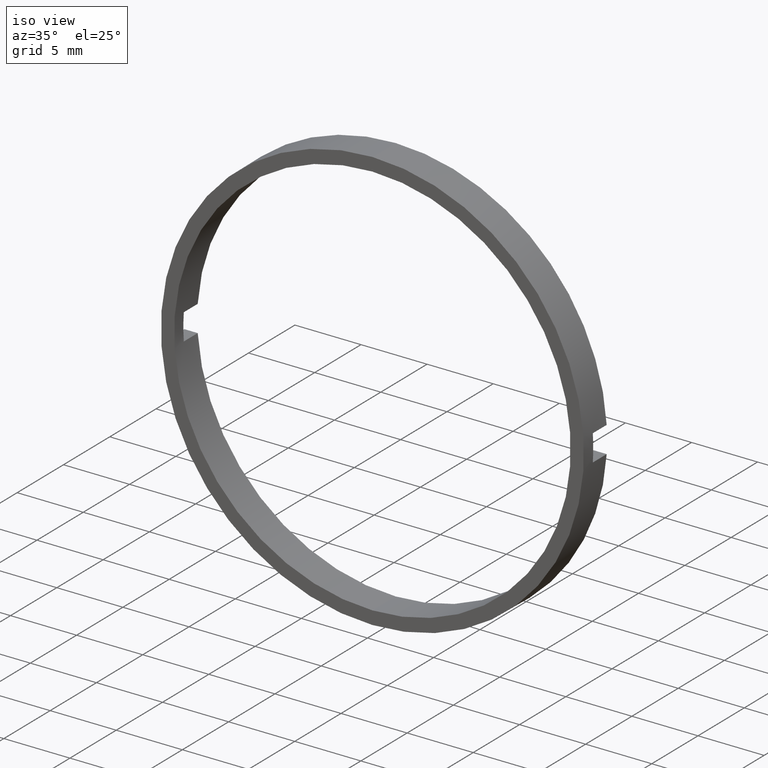
[diagram: clean part render]
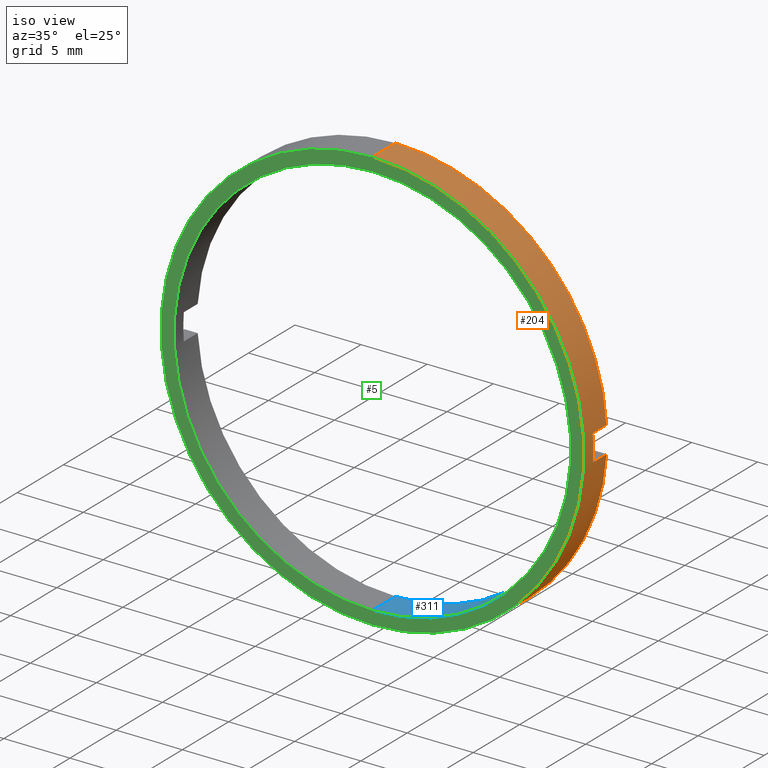
[diagram: same view with three faces highlighted in distinct colors, each labeled with its STEP entity id]
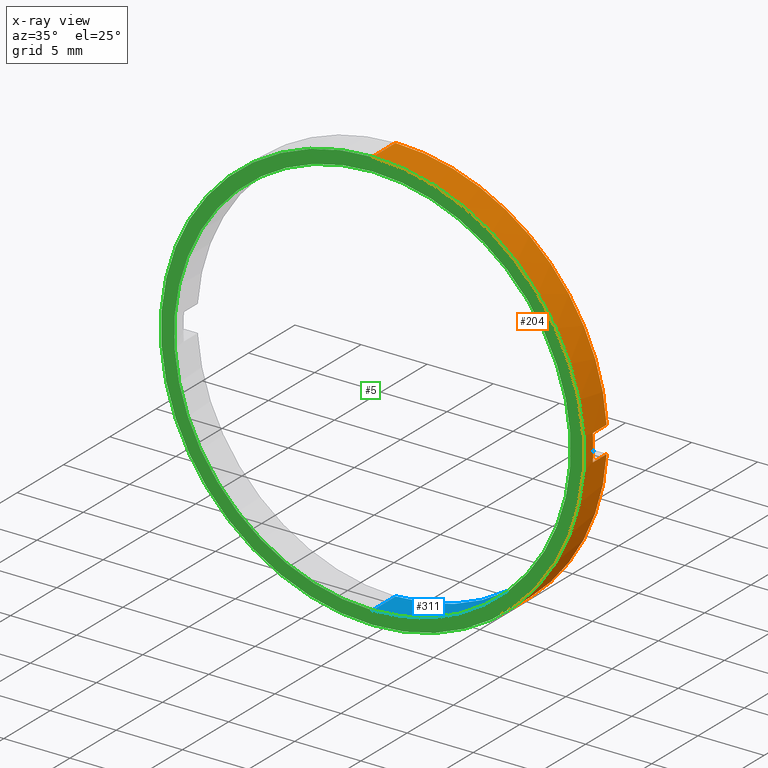
[diagram: x-ray of the same camera — body ghosted, the three highlighted faces saturated]
A machine part, iso view with three faces highlighted in distinct colors.
The next image is the same camera in x-ray (body ghosted, the three faces saturated) — at least one of them is partly hidden behind the body in this view.
Their STEP definitions:

[orange] entity #204 — the highlighted cylindrical surface (partial cylindrical patch) has radius 16 mm, axis along (-0, 1, -0).
#1 = DIRECTION ( 'NONE',  ( 0.0000000000000000000, 0.0000000000000000000, 1.000000000000000000 ) ) ;
#3 = LINE ( 'NONE', #99, #110 ) ;
#8 = VERTEX_POINT ( 'NONE', #55 ) ;
#15 = EDGE_CURVE ( 'NONE', #410, #131, #97, .T. ) ;
#16 = EDGE_CURVE ( 'NONE', #273, #131, #3, .T. ) ;
#19 = DIRECTION ( 'NONE',  ( 0.0000000000000000000, 0.0000000000000000000, 1.000000000000000000 ) ) ;
#27 = LINE ( 'NONE', #338, #459 ) ;
#29 = AXIS2_PLACEMENT_3D ( 'NONE', #33, #422, #218 ) ;
#33 = CARTESIAN_POINT ( 'NONE',  ( 0.0000000000000000000, 56.26084262701361600, 0.0000000000000000000 ) ) ;
#55 = CARTESIAN_POINT ( 'NONE',  ( 15.96871942267130600, -1.964249787179430900, -1.000000000000000000 ) ) ;
#56 = ORIENTED_EDGE ( 'NONE', *, *, #298, .T. ) ;
#61 = AXIS2_PLACEMENT_3D ( 'NONE', #437, #485, #307 ) ;
#63 = CARTESIAN_POINT ( 'NONE',  ( 1.959434878635766300E-015, 56.26084262701361600, -16.00000000000000700 ) ) ;
#66 = DIRECTION ( 'NONE',  ( -0.0000000000000000000, 1.000000000000000000, -0.0000000000000000000 ) ) ;
#67 = VECTOR ( 'NONE', #434, 1000.000000000000000 ) ;
#80 = CARTESIAN_POINT ( 'NONE',  ( 1.959434878635766300E-015, -1.964249787179434000, -16.00000000000000700 ) ) ;
#81 = DIRECTION ( 'NONE',  ( -0.0000000000000000000, 1.000000000000000000, -0.0000000000000000000 ) ) ;
#92 = CARTESIAN_POINT ( 'NONE',  ( 0.0000000000000000000, -4.464249787179428900, 16.00000000000000700 ) ) ;
#97 = CIRCLE ( 'NONE', #61, 16.00000000000000700 ) ;
#99 = CARTESIAN_POINT ( 'NONE',  ( 15.96871942267132000, 56.26084262701361600, 1.000000000000000000 ) ) ;
#104 = ORIENTED_EDGE ( 'NONE', *, *, #277, .F. ) ;
#105 = DIRECTION ( 'NONE',  ( -0.0000000000000000000, 1.000000000000000000, -0.0000000000000000000 ) ) ;
#110 = VECTOR ( 'NONE', #233, 1000.000000000000000 ) ;
#116 = CARTESIAN_POINT ( 'NONE',  ( 15.96871942267131700, -3.464249787179428400, 0.9999999999999995600 ) ) ;
#125 = EDGE_CURVE ( 'NONE', #8, #397, #275, .T. ) ;
#130 = ORIENTED_EDGE ( 'NONE', *, *, #187, .T. ) ;
#131 = VERTEX_POINT ( 'NONE', #409 ) ;
#137 = CIRCLE ( 'NONE', #304, 16.00000000000000700 ) ;
#147 = ORIENTED_EDGE ( 'NONE', *, *, #15, .F. ) ;
#179 = CARTESIAN_POINT ( 'NONE',  ( 0.0000000000000000000, -3.464249787179428400, 0.0000000000000000000 ) ) ;
#187 = EDGE_CURVE ( 'NONE', #303, #397, #421, .T. ) ;
#192 = LINE ( 'NONE', #476, #67 ) ;
#204 = ADVANCED_FACE ( 'NONE', ( #324 ), #312, .T. ) ;
#218 = DIRECTION ( 'NONE',  ( 0.0000000000000000000, 0.0000000000000000000, 1.000000000000000000 ) ) ;
#233 = DIRECTION ( 'NONE',  ( -0.0000000000000000000, 1.000000000000000000, -0.0000000000000000000 ) ) ;
#244 = ORIENTED_EDGE ( 'NONE', *, *, #16, .T. ) ;
#251 = AXIS2_PLACEMENT_3D ( 'NONE', #179, #369, #1 ) ;
#273 = VERTEX_POINT ( 'NONE', #116 ) ;
#275 = CIRCLE ( 'NONE', #431, 16.00000000000000700 ) ;
#276 = CIRCLE ( 'NONE', #251, 16.00000000000000700 ) ;
#277 = EDGE_CURVE ( 'NONE', #273, #357, #276, .T. ) ;
#289 = ORIENTED_EDGE ( 'NONE', *, *, #125, .F. ) ;
#298 = EDGE_CURVE ( 'NONE', #8, #357, #27, .T. ) ;
#303 = VERTEX_POINT ( 'NONE', #469 ) ;
#304 = AXIS2_PLACEMENT_3D ( 'NONE', #377, #81, #389 ) ;
#307 = DIRECTION ( 'NONE',  ( 0.0000000000000000000, 0.0000000000000000000, 1.000000000000000000 ) ) ;
#312 = CYLINDRICAL_SURFACE ( 'NONE', #29, 16.00000000000000700 ) ;
#324 = FACE_OUTER_BOUND ( 'NONE', #362, .T. ) ;
#338 = CARTESIAN_POINT ( 'NONE',  ( 15.96871942267132000, 56.26084262701361600, -1.000000000000000000 ) ) ;
#344 = ORIENTED_EDGE ( 'NONE', *, *, #451, .F. ) ;
#348 = EDGE_CURVE ( 'NONE', #463, #303, #137, .T. ) ;
#357 = VERTEX_POINT ( 'NONE', #386 ) ;
#362 = EDGE_LOOP ( 'NONE', ( #417, #130, #289, #56, #104, #244, #147, #344 ) ) ;
#369 = DIRECTION ( 'NONE',  ( 0.0000000000000000000, 1.000000000000000000, 0.0000000000000000000 ) ) ;
#377 = CARTESIAN_POINT ( 'NONE',  ( 0.0000000000000000000, -4.464249787179428900, 0.0000000000000000000 ) ) ;
#383 = DIRECTION ( 'NONE',  ( 0.0000000000000000000, -1.000000000000000000, 0.0000000000000000000 ) ) ;
#386 = CARTESIAN_POINT ( 'NONE',  ( 15.96871942267131700, -3.464249787179428400, -0.9999999999999995600 ) ) ;
#389 = DIRECTION ( 'NONE',  ( 0.0000000000000000000, 0.0000000000000000000, 1.000000000000000000 ) ) ;
#397 = VERTEX_POINT ( 'NONE', #80 ) ;
#409 = CARTESIAN_POINT ( 'NONE',  ( 15.96871942267130600, -1.964249787179430900, 1.000000000000000000 ) ) ;
#410 = VERTEX_POINT ( 'NONE', #428 ) ;
#416 = CARTESIAN_POINT ( 'NONE',  ( 0.0000000000000000000, -1.964249787179434000, 0.0000000000000000000 ) ) ;
#417 = ORIENTED_EDGE ( 'NONE', *, *, #348, .T. ) ;
#421 = LINE ( 'NONE', #63, #466 ) ;
#422 = DIRECTION ( 'NONE',  ( -0.0000000000000000000, 1.000000000000000000, -0.0000000000000000000 ) ) ;
#428 = CARTESIAN_POINT ( 'NONE',  ( 0.0000000000000000000, -1.964249787179434000, 16.00000000000000700 ) ) ;
#431 = AXIS2_PLACEMENT_3D ( 'NONE', #416, #105, #19 ) ;
#434 = DIRECTION ( 'NONE',  ( -0.0000000000000000000, 1.000000000000000000, -0.0000000000000000000 ) ) ;
#437 = CARTESIAN_POINT ( 'NONE',  ( 0.0000000000000000000, -1.964249787179434000, 0.0000000000000000000 ) ) ;
#451 = EDGE_CURVE ( 'NONE', #463, #410, #192, .T. ) ;
#459 = VECTOR ( 'NONE', #383, 1000.000000000000000 ) ;
#463 = VERTEX_POINT ( 'NONE', #92 ) ;
#466 = VECTOR ( 'NONE', #66, 1000.000000000000000 ) ;
#469 = CARTESIAN_POINT ( 'NONE',  ( 1.959434878635766300E-015, -4.464249787179428900, -16.00000000000000700 ) ) ;
#476 = CARTESIAN_POINT ( 'NONE',  ( 0.0000000000000000000, 56.26084262701361600, 16.00000000000000700 ) ) ;
#485 = DIRECTION ( 'NONE',  ( -0.0000000000000000000, 1.000000000000000000, -0.0000000000000000000 ) ) ;

[blue] entity #311 — the highlighted cylindrical surface (partial cylindrical patch) has radius 15 mm, axis along (-0, 1, -0).
#10 = EDGE_CURVE ( 'NONE', #423, #368, #310, .T. ) ;
#38 = AXIS2_PLACEMENT_3D ( 'NONE', #243, #323, #59 ) ;
#39 = CARTESIAN_POINT ( 'NONE',  ( 14.96662954709577200, 56.26084262701361600, -1.000000000000000000 ) ) ;
#40 = DIRECTION ( 'NONE',  ( 0.0000000000000000000, -1.000000000000000000, 0.0000000000000000000 ) ) ;
#46 = VECTOR ( 'NONE', #214, 1000.000000000000000 ) ;
#48 = ORIENTED_EDGE ( 'NONE', *, *, #162, .T. ) ;
#51 = CARTESIAN_POINT ( 'NONE',  ( 1.836970198721030800E-015, -1.964249787179434000, -15.00000000000000700 ) ) ;
#59 = DIRECTION ( 'NONE',  ( 0.0000000000000000000, 0.0000000000000000000, 1.000000000000000000 ) ) ;
#73 = CIRCLE ( 'NONE', #464, 15.00000000000000700 ) ;
#76 = DIRECTION ( 'NONE',  ( -0.0000000000000000000, -1.000000000000000000, -0.0000000000000000000 ) ) ;
#83 = DIRECTION ( 'NONE',  ( -0.0000000000000000000, 1.000000000000000000, -0.0000000000000000000 ) ) ;
#91 = CIRCLE ( 'NONE', #38, 15.00000000000000700 ) ;
#94 = CARTESIAN_POINT ( 'NONE',  ( 0.0000000000000000000, -1.964249787179434000, 0.0000000000000000000 ) ) ;
#96 = VECTOR ( 'NONE', #392, 1000.000000000000000 ) ;
#101 = EDGE_CURVE ( 'NONE', #296, #225, #73, .T. ) ;
#108 = ORIENTED_EDGE ( 'NONE', *, *, #10, .T. ) ;
#113 = DIRECTION ( 'NONE',  ( 1.509903313490212900E-014, 0.0000000000000000000, 1.000000000000000000 ) ) ;
#115 = VERTEX_POINT ( 'NONE', #488 ) ;
#120 = VERTEX_POINT ( 'NONE', #449 ) ;
#136 = CARTESIAN_POINT ( 'NONE',  ( 0.0000000000000000000, -4.464249787179428900, 0.0000000000000000000 ) ) ;
#140 = EDGE_LOOP ( 'NONE', ( #440, #446, #337, #108, #167, #219, #206, #48 ) ) ;
#154 = CARTESIAN_POINT ( 'NONE',  ( 0.0000000000000000000, 56.26084262701361600, 0.0000000000000000000 ) ) ;
#162 = EDGE_CURVE ( 'NONE', #115, #432, #91, .T. ) ;
#166 = LINE ( 'NONE', #268, #96 ) ;
#167 = ORIENTED_EDGE ( 'NONE', *, *, #317, .T. ) ;
#168 = AXIS2_PLACEMENT_3D ( 'NONE', #287, #76, #113 ) ;
#176 = DIRECTION ( 'NONE',  ( -0.0000000000000000000, 1.000000000000000000, -0.0000000000000000000 ) ) ;
#178 = VECTOR ( 'NONE', #40, 1000.000000000000000 ) ;
#189 = EDGE_CURVE ( 'NONE', #349, #120, #390, .T. ) ;
#197 = LINE ( 'NONE', #39, #366 ) ;
#206 = ORIENTED_EDGE ( 'NONE', *, *, #415, .T. ) ;
#208 = FACE_OUTER_BOUND ( 'NONE', #140, .T. ) ;
#214 = DIRECTION ( 'NONE',  ( -0.0000000000000000000, 1.000000000000000000, -0.0000000000000000000 ) ) ;
#219 = ORIENTED_EDGE ( 'NONE', *, *, #189, .F. ) ;
#220 = CARTESIAN_POINT ( 'NONE',  ( 0.0000000000000000000, 56.26084262701361600, 15.00000000000000700 ) ) ;
#225 = VERTEX_POINT ( 'NONE', #252 ) ;
#238 = DIRECTION ( 'NONE',  ( 0.0000000000000000000, 0.0000000000000000000, 1.000000000000000000 ) ) ;
#240 = DIRECTION ( 'NONE',  ( 0.0000000000000000000, 0.0000000000000000000, 1.000000000000000000 ) ) ;
#243 = CARTESIAN_POINT ( 'NONE',  ( 0.0000000000000000000, -1.964249787179434000, 0.0000000000000000000 ) ) ;
#252 = CARTESIAN_POINT ( 'NONE',  ( 1.836970198721030800E-015, -4.464249787179428900, -15.00000000000000700 ) ) ;
#268 = CARTESIAN_POINT ( 'NONE',  ( 1.836970198721030800E-015, 56.26084262701361600, -15.00000000000000700 ) ) ;
#272 = AXIS2_PLACEMENT_3D ( 'NONE', #154, #83, #297 ) ;
#278 = EDGE_CURVE ( 'NONE', #296, #423, #381, .T. ) ;
#287 = CARTESIAN_POINT ( 'NONE',  ( 0.0000000000000000000, -3.464249787179428400, 0.0000000000000000000 ) ) ;
#296 = VERTEX_POINT ( 'NONE', #326 ) ;
#297 = DIRECTION ( 'NONE',  ( 0.0000000000000000000, 0.0000000000000000000, 1.000000000000000000 ) ) ;
#299 = DIRECTION ( 'NONE',  ( -0.0000000000000000000, 1.000000000000000000, -0.0000000000000000000 ) ) ;
#310 = CIRCLE ( 'NONE', #460, 15.00000000000000700 ) ;
#311 = ADVANCED_FACE ( 'NONE', ( #208 ), #447, .F. ) ;
#317 = EDGE_CURVE ( 'NONE', #368, #120, #467, .T. ) ;
#323 = DIRECTION ( 'NONE',  ( -0.0000000000000000000, 1.000000000000000000, -0.0000000000000000000 ) ) ;
#326 = CARTESIAN_POINT ( 'NONE',  ( 0.0000000000000000000, -4.464249787179428900, 15.00000000000000700 ) ) ;
#335 = CARTESIAN_POINT ( 'NONE',  ( 14.96662954709577100, -1.964249787179434000, 0.9999999999999995600 ) ) ;
#337 = ORIENTED_EDGE ( 'NONE', *, *, #278, .T. ) ;
#349 = VERTEX_POINT ( 'NONE', #505 ) ;
#366 = VECTOR ( 'NONE', #299, 1000.000000000000000 ) ;
#368 = VERTEX_POINT ( 'NONE', #335 ) ;
#381 = LINE ( 'NONE', #220, #46 ) ;
#390 = CIRCLE ( 'NONE', #168, 15.00000000000000700 ) ;
#392 = DIRECTION ( 'NONE',  ( -0.0000000000000000000, 1.000000000000000000, -0.0000000000000000000 ) ) ;
#396 = CARTESIAN_POINT ( 'NONE',  ( 0.0000000000000000000, -1.964249787179434000, 15.00000000000000700 ) ) ;
#415 = EDGE_CURVE ( 'NONE', #349, #115, #197, .T. ) ;
#423 = VERTEX_POINT ( 'NONE', #396 ) ;
#432 = VERTEX_POINT ( 'NONE', #51 ) ;
#435 = EDGE_CURVE ( 'NONE', #225, #432, #166, .T. ) ;
#440 = ORIENTED_EDGE ( 'NONE', *, *, #435, .F. ) ;
#446 = ORIENTED_EDGE ( 'NONE', *, *, #101, .F. ) ;
#447 = CYLINDRICAL_SURFACE ( 'NONE', #272, 15.00000000000000700 ) ;
#449 = CARTESIAN_POINT ( 'NONE',  ( 14.96662954709577100, -3.464249787179428400, 0.9999999999999995600 ) ) ;
#460 = AXIS2_PLACEMENT_3D ( 'NONE', #94, #486, #238 ) ;
#461 = CARTESIAN_POINT ( 'NONE',  ( 14.96662954709577200, 56.26084262701361600, 1.000000000000000000 ) ) ;
#464 = AXIS2_PLACEMENT_3D ( 'NONE', #136, #176, #240 ) ;
#467 = LINE ( 'NONE', #461, #178 ) ;
#486 = DIRECTION ( 'NONE',  ( -0.0000000000000000000, 1.000000000000000000, -0.0000000000000000000 ) ) ;
#488 = CARTESIAN_POINT ( 'NONE',  ( 14.96662954709577100, -1.964249787179434000, -0.9999999999999995600 ) ) ;
#505 = CARTESIAN_POINT ( 'NONE',  ( 14.96662954709577100, -3.464249787179428400, -0.9999999999999995600 ) ) ;

[green] entity #5 — the highlighted planar face has unit normal (-0, 1, 0).
#5 = ADVANCED_FACE ( 'NONE', ( #427, #124 ), #134, .F. ) ;
#17 = DIRECTION ( 'NONE',  ( 0.0000000000000000000, 0.0000000000000000000, 1.000000000000000000 ) ) ;
#22 = CARTESIAN_POINT ( 'NONE',  ( 0.0000000000000000000, -4.464249787179428900, 0.0000000000000000000 ) ) ;
#45 = EDGE_CURVE ( 'NONE', #225, #296, #406, .T. ) ;
#70 = ORIENTED_EDGE ( 'NONE', *, *, #101, .T. ) ;
#73 = CIRCLE ( 'NONE', #464, 15.00000000000000700 ) ;
#81 = DIRECTION ( 'NONE',  ( -0.0000000000000000000, 1.000000000000000000, -0.0000000000000000000 ) ) ;
#92 = CARTESIAN_POINT ( 'NONE',  ( 0.0000000000000000000, -4.464249787179428900, 16.00000000000000700 ) ) ;
#101 = EDGE_CURVE ( 'NONE', #296, #225, #73, .T. ) ;
#124 = FACE_BOUND ( 'NONE', #237, .T. ) ;
#134 = PLANE ( 'NONE',  #491 ) ;
#136 = CARTESIAN_POINT ( 'NONE',  ( 0.0000000000000000000, -4.464249787179428900, 0.0000000000000000000 ) ) ;
#137 = CIRCLE ( 'NONE', #304, 16.00000000000000700 ) ;
#151 = EDGE_CURVE ( 'NONE', #303, #463, #177, .T. ) ;
#176 = DIRECTION ( 'NONE',  ( -0.0000000000000000000, 1.000000000000000000, -0.0000000000000000000 ) ) ;
#177 = CIRCLE ( 'NONE', #370, 16.00000000000000700 ) ;
#211 = ORIENTED_EDGE ( 'NONE', *, *, #45, .T. ) ;
#225 = VERTEX_POINT ( 'NONE', #252 ) ;
#237 = EDGE_LOOP ( 'NONE', ( #70, #211 ) ) ;
#240 = DIRECTION ( 'NONE',  ( 0.0000000000000000000, 0.0000000000000000000, 1.000000000000000000 ) ) ;
#252 = CARTESIAN_POINT ( 'NONE',  ( 1.836970198721030800E-015, -4.464249787179428900, -15.00000000000000700 ) ) ;
#260 = EDGE_LOOP ( 'NONE', ( #462, #267 ) ) ;
#267 = ORIENTED_EDGE ( 'NONE', *, *, #151, .F. ) ;
#281 = DIRECTION ( 'NONE',  ( -0.0000000000000000000, 1.000000000000000000, -0.0000000000000000000 ) ) ;
#296 = VERTEX_POINT ( 'NONE', #326 ) ;
#303 = VERTEX_POINT ( 'NONE', #469 ) ;
#304 = AXIS2_PLACEMENT_3D ( 'NONE', #377, #81, #389 ) ;
#326 = CARTESIAN_POINT ( 'NONE',  ( 0.0000000000000000000, -4.464249787179428900, 15.00000000000000700 ) ) ;
#348 = EDGE_CURVE ( 'NONE', #463, #303, #137, .T. ) ;
#358 = DIRECTION ( 'NONE',  ( 0.0000000000000000000, 0.0000000000000000000, 1.000000000000000000 ) ) ;
#370 = AXIS2_PLACEMENT_3D ( 'NONE', #22, #448, #17 ) ;
#377 = CARTESIAN_POINT ( 'NONE',  ( 0.0000000000000000000, -4.464249787179428900, 0.0000000000000000000 ) ) ;
#389 = DIRECTION ( 'NONE',  ( 0.0000000000000000000, 0.0000000000000000000, 1.000000000000000000 ) ) ;
#405 = CARTESIAN_POINT ( 'NONE',  ( 15.00000000000000700, -4.464249787179429800, 0.0000000000000000000 ) ) ;
#406 = CIRCLE ( 'NONE', #484, 15.00000000000000700 ) ;
#411 = CARTESIAN_POINT ( 'NONE',  ( 0.0000000000000000000, -4.464249787179428900, 0.0000000000000000000 ) ) ;
#427 = FACE_OUTER_BOUND ( 'NONE', #260, .T. ) ;
#445 = DIRECTION ( 'NONE',  ( -0.0000000000000000000, 1.000000000000000000, 0.0000000000000000000 ) ) ;
#448 = DIRECTION ( 'NONE',  ( -0.0000000000000000000, 1.000000000000000000, -0.0000000000000000000 ) ) ;
#462 = ORIENTED_EDGE ( 'NONE', *, *, #348, .F. ) ;
#463 = VERTEX_POINT ( 'NONE', #92 ) ;
#464 = AXIS2_PLACEMENT_3D ( 'NONE', #136, #176, #240 ) ;
#469 = CARTESIAN_POINT ( 'NONE',  ( 1.959434878635766300E-015, -4.464249787179428900, -16.00000000000000700 ) ) ;
#484 = AXIS2_PLACEMENT_3D ( 'NONE', #411, #281, #492 ) ;
#491 = AXIS2_PLACEMENT_3D ( 'NONE', #405, #445, #358 ) ;
#492 = DIRECTION ( 'NONE',  ( 0.0000000000000000000, 0.0000000000000000000, 1.000000000000000000 ) ) ;